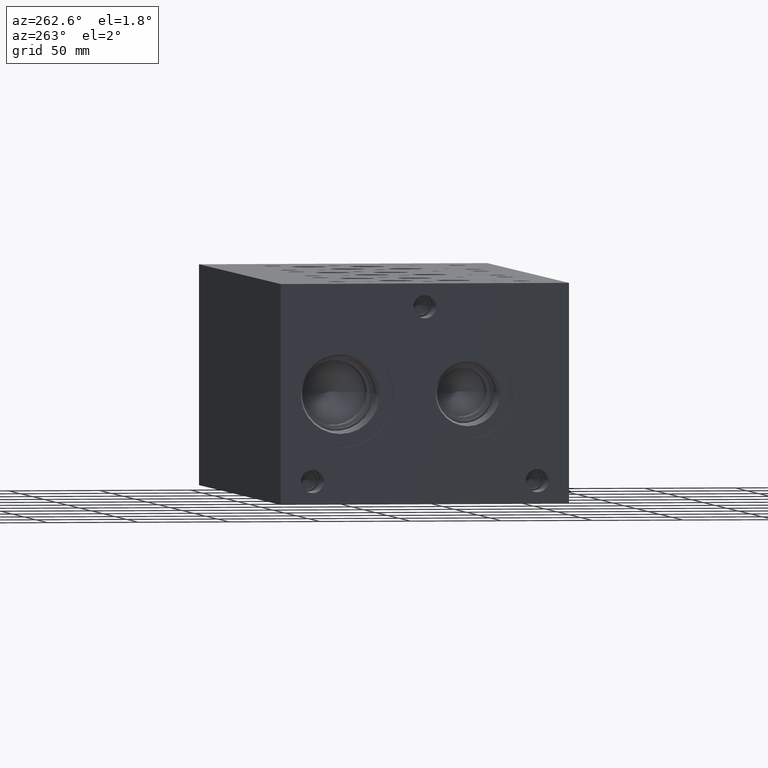
[diagram: clean part render]
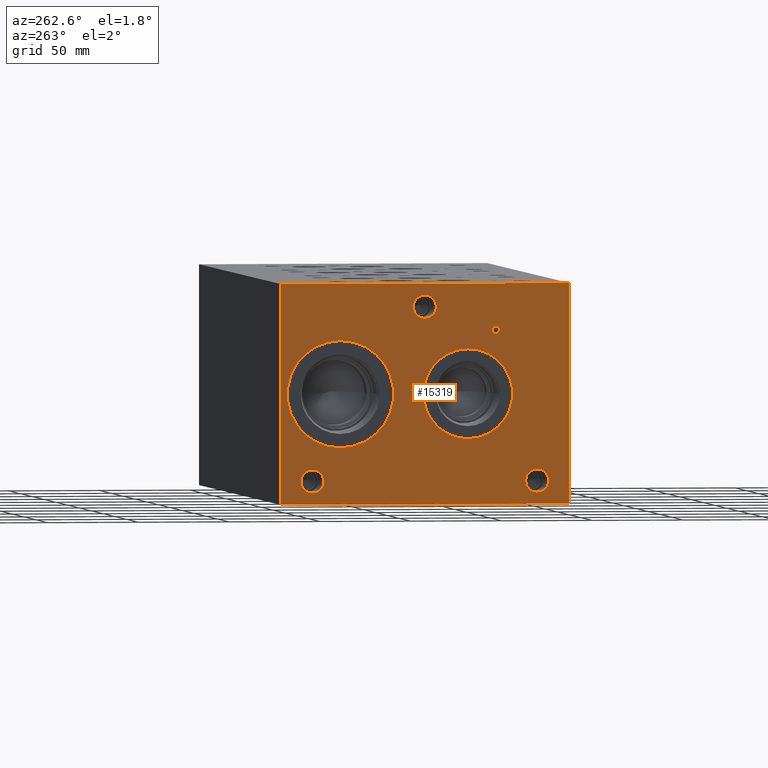
[diagram: same view with one face highlighted and labeled with its STEP entity id]
A machine part, auxiliary view. The second image highlights one B-rep face of the part: STEP entity #15319.
In plain terms, the highlighted planar face has unit normal (-1, 0, 0).
Its self-contained STEP definition (entity closure, byte-faithful):
#273=CIRCLE('',#16172,6.35);
#274=CIRCLE('',#16173,6.35);
#275=CIRCLE('',#16174,6.35);
#276=CIRCLE('',#16175,6.35);
#277=CIRCLE('',#16176,6.35);
#278=CIRCLE('',#16177,6.35);
#279=CIRCLE('',#16178,24.5618);
#280=CIRCLE('',#16179,24.5618);
#281=CIRCLE('',#16180,29.2862);
#282=CIRCLE('',#16181,29.2862);
#783=FACE_BOUND('',#2307,.T.);
#784=FACE_BOUND('',#2308,.T.);
#785=FACE_BOUND('',#2309,.T.);
#786=FACE_BOUND('',#2310,.T.);
#787=FACE_BOUND('',#2311,.T.);
#788=FACE_BOUND('',#2312,.T.);
#789=FACE_BOUND('',#2313,.T.);
#959=B_SPLINE_CURVE_WITH_KNOTS('',2,(#21568,#21569,#21570,#21571),
 .UNSPECIFIED.,.F.,.F.,(3,1,3),(0.,1.,2.),.UNSPECIFIED.);
#961=B_SPLINE_CURVE_WITH_KNOTS('',2,(#21589,#21590,#21591,#21592),
 .UNSPECIFIED.,.F.,.F.,(3,1,3),(0.,1.,2.),.UNSPECIFIED.);
#963=B_SPLINE_CURVE_WITH_KNOTS('',2,(#21638,#21639,#21640,#21641),
 .UNSPECIFIED.,.F.,.F.,(3,1,3),(0.,1.,2.),.UNSPECIFIED.);
#965=B_SPLINE_CURVE_WITH_KNOTS('',2,(#21656,#21657,#21658,#21659),
 .UNSPECIFIED.,.F.,.F.,(3,1,3),(0.,1.,2.),.UNSPECIFIED.);
#1453=FACE_OUTER_BOUND('',#2306,.T.);
#2306=EDGE_LOOP('',(#10117,#10118,#10119,#10120));
#2307=EDGE_LOOP('',(#10121,#10122,#10123,#10124,#10125,#10126,#10127,#10128));
#2308=EDGE_LOOP('',(#10129,#10130));
#2309=EDGE_LOOP('',(#10131,#10132));
#2310=EDGE_LOOP('',(#10133,#10134));
#2311=EDGE_LOOP('',(#10135,#10136));
#2312=EDGE_LOOP('',(#10137,#10138));
#2313=EDGE_LOOP('',(#10139,#10140,#10141,#10142,#10143,#10144,#10145,#10146,
#10147));
#3309=LINE('',#21418,#4718);
#3313=LINE('',#21426,#4722);
#3316=LINE('',#21432,#4725);
#3319=LINE('',#21438,#4728);
#3322=LINE('',#21444,#4731);
#3325=LINE('',#21450,#4734);
#3328=LINE('',#21456,#4737);
#3331=LINE('',#21461,#4740);
#3349=LINE('',#21601,#4758);
#3352=LINE('',#21607,#4761);
#3355=LINE('',#21613,#4764);
#3358=LINE('',#21619,#4767);
#3361=LINE('',#21625,#4770);
#3365=LINE('',#21668,#4774);
#3366=LINE('',#21670,#4775);
#3367=LINE('',#21672,#4776);
#3368=LINE('',#21673,#4777);
#4718=VECTOR('',#17446,10.);
#4722=VECTOR('',#17452,10.);
#4725=VECTOR('',#17457,10.);
#4728=VECTOR('',#17462,10.);
#4731=VECTOR('',#17467,10.);
#4734=VECTOR('',#17472,10.);
#4737=VECTOR('',#17477,10.);
#4740=VECTOR('',#17482,10.);
#4758=VECTOR('',#17510,10.);
#4761=VECTOR('',#17515,10.);
#4764=VECTOR('',#17520,10.);
#4767=VECTOR('',#17525,10.);
#4770=VECTOR('',#17530,10.);
#4774=VECTOR('',#17538,10.);
#4775=VECTOR('',#17539,10.);
#4776=VECTOR('',#17540,10.);
#4777=VECTOR('',#17541,10.);
#6129=VERTEX_POINT('',#21416);
#6130=VERTEX_POINT('',#21417);
#6133=VERTEX_POINT('',#21425);
#6135=VERTEX_POINT('',#21431);
#6137=VERTEX_POINT('',#21437);
#6139=VERTEX_POINT('',#21443);
#6141=VERTEX_POINT('',#21449);
#6143=VERTEX_POINT('',#21455);
#6159=VERTEX_POINT('',#21566);
#6160=VERTEX_POINT('',#21567);
#6163=VERTEX_POINT('',#21588);
#6165=VERTEX_POINT('',#21600);
#6167=VERTEX_POINT('',#21606);
#6169=VERTEX_POINT('',#21612);
#6171=VERTEX_POINT('',#21618);
#6173=VERTEX_POINT('',#21624);
#6175=VERTEX_POINT('',#21637);
#6177=VERTEX_POINT('',#21666);
#6178=VERTEX_POINT('',#21667);
#6179=VERTEX_POINT('',#21669);
#6180=VERTEX_POINT('',#21671);
#6181=VERTEX_POINT('',#21674);
#6182=VERTEX_POINT('',#21675);
#6183=VERTEX_POINT('',#21678);
#6184=VERTEX_POINT('',#21679);
#6185=VERTEX_POINT('',#21682);
#6186=VERTEX_POINT('',#21683);
#6187=VERTEX_POINT('',#21686);
#6188=VERTEX_POINT('',#21687);
#6189=VERTEX_POINT('',#21690);
#6190=VERTEX_POINT('',#21691);
#7702=EDGE_CURVE('',#6129,#6130,#3309,.T.);
#7706=EDGE_CURVE('',#6133,#6129,#3313,.T.);
#7709=EDGE_CURVE('',#6135,#6133,#3316,.T.);
#7712=EDGE_CURVE('',#6137,#6135,#3319,.T.);
#7715=EDGE_CURVE('',#6139,#6137,#3322,.T.);
#7718=EDGE_CURVE('',#6141,#6139,#3325,.T.);
#7721=EDGE_CURVE('',#6143,#6141,#3328,.T.);
#7724=EDGE_CURVE('',#6130,#6143,#3331,.T.);
#7747=EDGE_CURVE('',#6159,#6160,#959,.T.);
#7751=EDGE_CURVE('',#6163,#6159,#961,.T.);
#7754=EDGE_CURVE('',#6165,#6163,#3349,.T.);
#7757=EDGE_CURVE('',#6167,#6165,#3352,.T.);
#7760=EDGE_CURVE('',#6169,#6167,#3355,.T.);
#7763=EDGE_CURVE('',#6171,#6169,#3358,.T.);
#7766=EDGE_CURVE('',#6173,#6171,#3361,.T.);
#7769=EDGE_CURVE('',#6175,#6173,#963,.T.);
#7772=EDGE_CURVE('',#6160,#6175,#965,.T.);
#7774=EDGE_CURVE('',#6177,#6178,#3365,.T.);
#7775=EDGE_CURVE('',#6178,#6179,#3366,.T.);
#7776=EDGE_CURVE('',#6180,#6179,#3367,.T.);
#7777=EDGE_CURVE('',#6177,#6180,#3368,.T.);
#7778=EDGE_CURVE('',#6181,#6182,#273,.T.);
#7779=EDGE_CURVE('',#6182,#6181,#274,.T.);
#7780=EDGE_CURVE('',#6183,#6184,#275,.T.);
#7781=EDGE_CURVE('',#6184,#6183,#276,.T.);
#7782=EDGE_CURVE('',#6185,#6186,#277,.T.);
#7783=EDGE_CURVE('',#6186,#6185,#278,.T.);
#7784=EDGE_CURVE('',#6187,#6188,#279,.T.);
#7785=EDGE_CURVE('',#6188,#6187,#280,.T.);
#7786=EDGE_CURVE('',#6189,#6190,#281,.T.);
#7787=EDGE_CURVE('',#6190,#6189,#282,.T.);
#10117=ORIENTED_EDGE('',*,*,#7774,.T.);
#10118=ORIENTED_EDGE('',*,*,#7775,.T.);
#10119=ORIENTED_EDGE('',*,*,#7776,.F.);
#10120=ORIENTED_EDGE('',*,*,#7777,.F.);
#10121=ORIENTED_EDGE('',*,*,#7702,.T.);
#10122=ORIENTED_EDGE('',*,*,#7724,.T.);
#10123=ORIENTED_EDGE('',*,*,#7721,.T.);
#10124=ORIENTED_EDGE('',*,*,#7718,.T.);
#10125=ORIENTED_EDGE('',*,*,#7715,.T.);
#10126=ORIENTED_EDGE('',*,*,#7712,.T.);
#10127=ORIENTED_EDGE('',*,*,#7709,.T.);
#10128=ORIENTED_EDGE('',*,*,#7706,.T.);
#10129=ORIENTED_EDGE('',*,*,#7778,.T.);
#10130=ORIENTED_EDGE('',*,*,#7779,.T.);
#10131=ORIENTED_EDGE('',*,*,#7780,.T.);
#10132=ORIENTED_EDGE('',*,*,#7781,.T.);
#10133=ORIENTED_EDGE('',*,*,#7782,.T.);
#10134=ORIENTED_EDGE('',*,*,#7783,.T.);
#10135=ORIENTED_EDGE('',*,*,#7784,.T.);
#10136=ORIENTED_EDGE('',*,*,#7785,.T.);
#10137=ORIENTED_EDGE('',*,*,#7786,.T.);
#10138=ORIENTED_EDGE('',*,*,#7787,.T.);
#10139=ORIENTED_EDGE('',*,*,#7747,.T.);
#10140=ORIENTED_EDGE('',*,*,#7772,.T.);
#10141=ORIENTED_EDGE('',*,*,#7769,.T.);
#10142=ORIENTED_EDGE('',*,*,#7766,.T.);
#10143=ORIENTED_EDGE('',*,*,#7763,.T.);
#10144=ORIENTED_EDGE('',*,*,#7760,.T.);
#10145=ORIENTED_EDGE('',*,*,#7757,.T.);
#10146=ORIENTED_EDGE('',*,*,#7754,.T.);
#10147=ORIENTED_EDGE('',*,*,#7751,.T.);
#14343=PLANE('',#16171);
#15319=ADVANCED_FACE('',(#1453,#783,#784,#785,#786,#787,#788,#789),#14343,
 .T.);
#16171=AXIS2_PLACEMENT_3D('',#21665,#17536,#17537);
#16172=AXIS2_PLACEMENT_3D('',#21676,#17542,#17543);
#16173=AXIS2_PLACEMENT_3D('',#21677,#17544,#17545);
#16174=AXIS2_PLACEMENT_3D('',#21680,#17546,#17547);
#16175=AXIS2_PLACEMENT_3D('',#21681,#17548,#17549);
#16176=AXIS2_PLACEMENT_3D('',#21684,#17550,#17551);
#16177=AXIS2_PLACEMENT_3D('',#21685,#17552,#17553);
#16178=AXIS2_PLACEMENT_3D('',#21688,#17554,#17555);
#16179=AXIS2_PLACEMENT_3D('',#21689,#17556,#17557);
#16180=AXIS2_PLACEMENT_3D('',#21692,#17558,#17559);
#16181=AXIS2_PLACEMENT_3D('',#21693,#17560,#17561);
#17446=DIRECTION('',(0.,1.,0.));
#17452=DIRECTION('',(0.,3.17280044688051E-15,-1.));
#17457=DIRECTION('',(0.,1.,8.33818088455555E-15));
#17462=DIRECTION('',(0.,2.36438827822327E-14,-1.));
#17467=DIRECTION('',(0.,-1.,-3.47984565141734E-15));
#17472=DIRECTION('',(0.,-2.36438827822327E-14,1.));
#17477=DIRECTION('',(0.,1.,0.));
#17482=DIRECTION('',(0.,-3.17280044688051E-15,1.));
#17510=DIRECTION('',(0.,-1.,0.));
#17515=DIRECTION('',(0.,-2.79741238752512E-15,1.));
#17520=DIRECTION('',(0.,1.,0.));
#17525=DIRECTION('',(0.,3.75218139805001E-15,-1.));
#17530=DIRECTION('',(0.,1.,0.));
#17536=DIRECTION('center_axis',(-1.,0.,0.));
#17537=DIRECTION('ref_axis',(0.,-1.,0.));
#17538=DIRECTION('',(0.,-1.,0.));
#17539=DIRECTION('',(0.,0.,1.));
#17540=DIRECTION('',(0.,-1.,0.));
#17541=DIRECTION('',(0.,0.,1.));
#17542=DIRECTION('center_axis',(1.,0.,0.));
#17543=DIRECTION('ref_axis',(0.,1.,0.));
#17544=DIRECTION('center_axis',(1.,0.,0.));
#17545=DIRECTION('ref_axis',(0.,1.,0.));
#17546=DIRECTION('center_axis',(1.,0.,0.));
#17547=DIRECTION('ref_axis',(0.,1.,0.));
#17548=DIRECTION('center_axis',(1.,0.,0.));
#17549=DIRECTION('ref_axis',(0.,1.,0.));
#17550=DIRECTION('center_axis',(1.,0.,0.));
#17551=DIRECTION('ref_axis',(0.,1.,0.));
#17552=DIRECTION('center_axis',(1.,0.,0.));
#17553=DIRECTION('ref_axis',(0.,1.,0.));
#17554=DIRECTION('center_axis',(1.,0.,0.));
#17555=DIRECTION('ref_axis',(0.,0.,1.));
#17556=DIRECTION('center_axis',(1.,0.,0.));
#17557=DIRECTION('ref_axis',(0.,0.,1.));
#17558=DIRECTION('center_axis',(1.,0.,0.));
#17559=DIRECTION('ref_axis',(0.,0.,1.));
#17560=DIRECTION('center_axis',(1.,0.,0.));
#17561=DIRECTION('ref_axis',(0.,0.,1.));
#21416=CARTESIAN_POINT('',(0.,144.452434728547,90.805));
#21417=CARTESIAN_POINT('',(0.,145.296356920087,90.805));
#21418=CARTESIAN_POINT('',(0.,151.601217364274,90.805));
#21425=CARTESIAN_POINT('',(0.,144.452434728547,96.4037033194816));
#21426=CARTESIAN_POINT('',(0.,144.452434728547,48.2018516597408));
#21431=CARTESIAN_POINT('',(0.,142.322045781612,96.4037033194816));
#21432=CARTESIAN_POINT('',(0.,150.536022890806,96.4037033194816));
#21437=CARTESIAN_POINT('',(0.,142.322045781612,97.1549999046326));
#21438=CARTESIAN_POINT('',(0.,142.322045781613,48.5774999523161));
#21443=CARTESIAN_POINT('',(0.,147.426745867022,97.1549999046326));
#21444=CARTESIAN_POINT('',(0.,153.088372933511,97.1549999046326));
#21449=CARTESIAN_POINT('',(0.,147.426745867022,96.4037033194816));
#21450=CARTESIAN_POINT('',(0.,147.426745867023,48.2018516597407));
#21455=CARTESIAN_POINT('',(0.,145.296356920087,96.4037033194816));
#21456=CARTESIAN_POINT('',(0.,152.023178460043,96.4037033194816));
#21461=CARTESIAN_POINT('',(0.,145.296356920087,45.4025));
#21566=CARTESIAN_POINT('',(0.,38.9746327976406,96.7587681439707));
#21567=CARTESIAN_POINT('',(0.,38.218190345468,95.2407373726039));
#21568=CARTESIAN_POINT('Ctrl Pts',(0.,38.9746327976406,96.7587681439707));
#21569=CARTESIAN_POINT('Ctrl Pts',(0.,38.6195679731514,96.5169123939563));
#21570=CARTESIAN_POINT('Ctrl Pts',(0.,38.218190345468,95.7707616758269));
#21571=CARTESIAN_POINT('Ctrl Pts',(0.,38.218190345468,95.2407373726039));
#21588=CARTESIAN_POINT('',(0.,40.6367478456117,97.1549999046326));
#21589=CARTESIAN_POINT('Ctrl Pts',(0.,40.6367478456117,97.1549999046326));
#21590=CARTESIAN_POINT('Ctrl Pts',(0.,40.0707024732376,97.1549999046326));
#21591=CARTESIAN_POINT('Ctrl Pts',(0.,39.2782389519139,96.9697486918556));
#21592=CARTESIAN_POINT('Ctrl Pts',(0.,38.9746327976406,96.7587681439707));
#21600=CARTESIAN_POINT('',(0.,42.2319666223022,97.1549999046326));
#21601=CARTESIAN_POINT('',(0.,100.490983311151,97.1549999046326));
#21606=CARTESIAN_POINT('',(0.,42.2319666223022,90.805));
#21607=CARTESIAN_POINT('',(0.,42.2319666223023,45.4024999999998));
#21612=CARTESIAN_POINT('',(0.,41.3880444307627,90.805));
#21613=CARTESIAN_POINT('',(0.,100.069022215381,90.805));
#21618=CARTESIAN_POINT('',(0.,41.3880444307627,93.1720988299279));
#21619=CARTESIAN_POINT('',(0.,41.3880444307629,46.5860494149637));
#21624=CARTESIAN_POINT('',(0.,40.6727689147628,93.1720988299279));
#21625=CARTESIAN_POINT('',(0.,99.7113844573814,93.1720988299279));
#21637=CARTESIAN_POINT('',(0.,38.7739439837989,93.8307698086904));
#21638=CARTESIAN_POINT('Ctrl Pts',(0.,38.7739439837989,93.8307698086904));
#21639=CARTESIAN_POINT('Ctrl Pts',(0.,39.1032794731802,93.5065801863307));
#21640=CARTESIAN_POINT('Ctrl Pts',(0.,39.9935144679139,93.1720988299279));
#21641=CARTESIAN_POINT('Ctrl Pts',(0.,40.6727689147628,93.1720988299279));
#21656=CARTESIAN_POINT('Ctrl Pts',(0.,38.218190345468,95.2407373726039));
#21657=CARTESIAN_POINT('Ctrl Pts',(0.,38.218190345468,94.8290680108774));
#21658=CARTESIAN_POINT('Ctrl Pts',(0.,38.5115047656982,94.0880631597695));
#21659=CARTESIAN_POINT('Ctrl Pts',(0.,38.7739439837989,93.8307698086904));
#21665=CARTESIAN_POINT('Origin',(0.,158.75,0.));
#21666=CARTESIAN_POINT('',(0.,158.75,0.));
#21667=CARTESIAN_POINT('',(0.,0.,0.));
#21668=CARTESIAN_POINT('',(0.,158.75,0.));
#21669=CARTESIAN_POINT('',(0.,0.,120.65));
#21670=CARTESIAN_POINT('',(0.,0.,0.));
#21671=CARTESIAN_POINT('',(0.,158.75,120.65));
#21672=CARTESIAN_POINT('',(0.,158.75,120.65));
#21673=CARTESIAN_POINT('',(0.,158.75,0.));
#21674=CARTESIAN_POINT('',(0.,85.725,107.95));
#21675=CARTESIAN_POINT('',(0.,73.025,107.95));
#21676=CARTESIAN_POINT('Origin',(0.,79.375,107.95));
#21677=CARTESIAN_POINT('Origin',(0.,79.375,107.95));
#21678=CARTESIAN_POINT('',(0.,147.6248,12.7));
#21679=CARTESIAN_POINT('',(0.,134.9248,12.7));
#21680=CARTESIAN_POINT('Origin',(0.,141.2748,12.7));
#21681=CARTESIAN_POINT('Origin',(0.,141.2748,12.7));
#21682=CARTESIAN_POINT('',(0.,23.8252,12.7));
#21683=CARTESIAN_POINT('',(0.,11.1252,12.7));
#21684=CARTESIAN_POINT('Origin',(0.,17.4752,12.7));
#21685=CARTESIAN_POINT('Origin',(0.,17.4752,12.7));
#21686=CARTESIAN_POINT('',(0.,55.5752,84.8868));
#21687=CARTESIAN_POINT('',(6.93889390390723E-17,55.5752,35.7632));
#21688=CARTESIAN_POINT('Origin',(0.,55.5752,60.325));
#21689=CARTESIAN_POINT('Origin',(0.,55.5752,60.325));
#21690=CARTESIAN_POINT('',(0.,125.8316,89.6112));
#21691=CARTESIAN_POINT('',(0.,125.8316,31.0388));
#21692=CARTESIAN_POINT('Origin',(0.,125.8316,60.325));
#21693=CARTESIAN_POINT('Origin',(0.,125.8316,60.325));